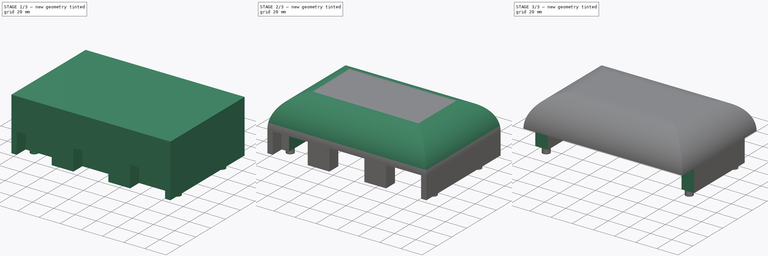
[diagram: build sequence overview — one tinted view per stage of 3, left to right]
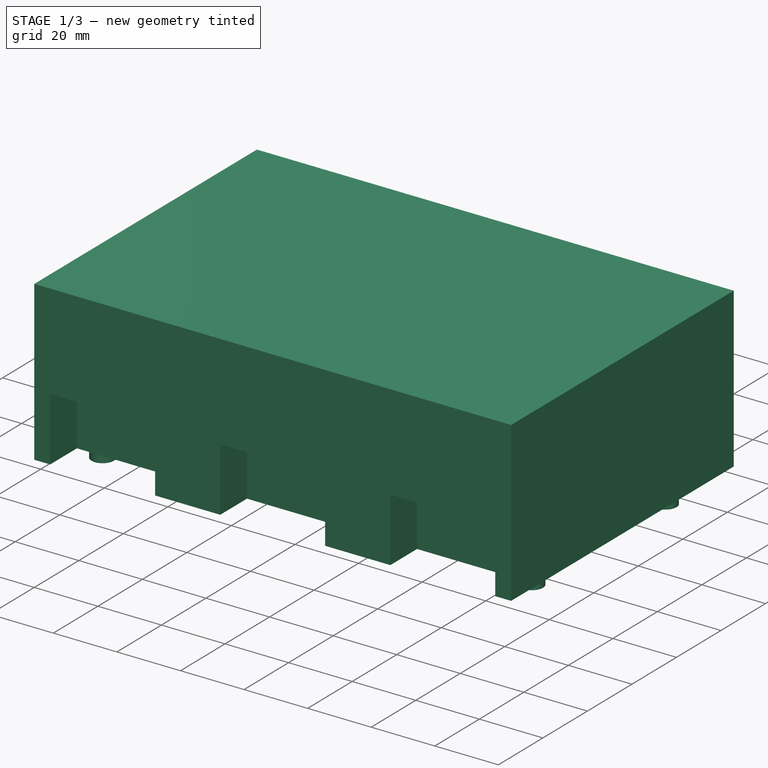
[diagram: stage 1 of 3 — iso view after this stage's code; geometry added in this stage tinted green]
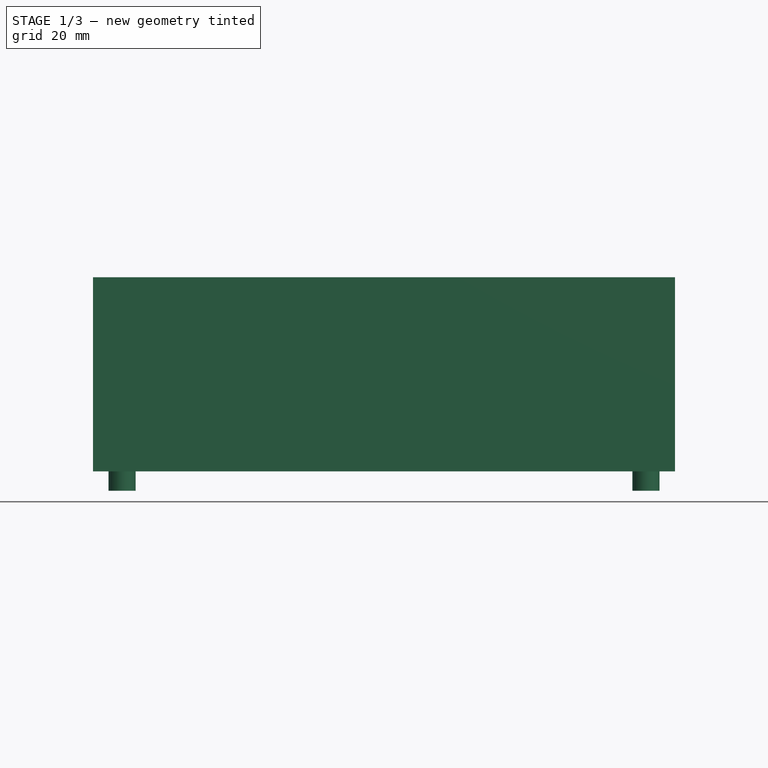
[diagram: stage 1 of 3 — front view after this stage's code; geometry added in this stage tinted green]
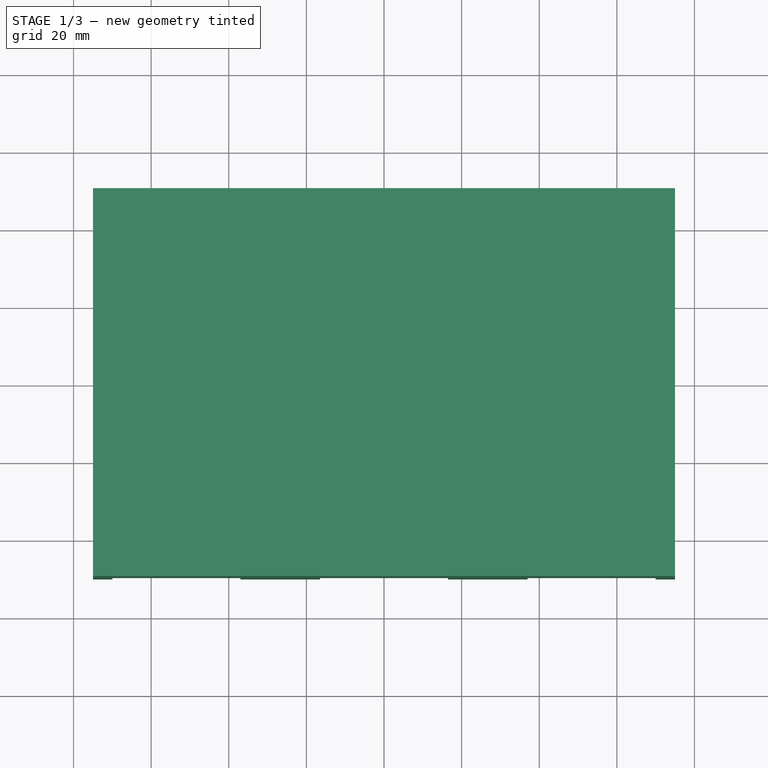
[diagram: stage 1 of 3 — top view after this stage's code; geometry added in this stage tinted green]
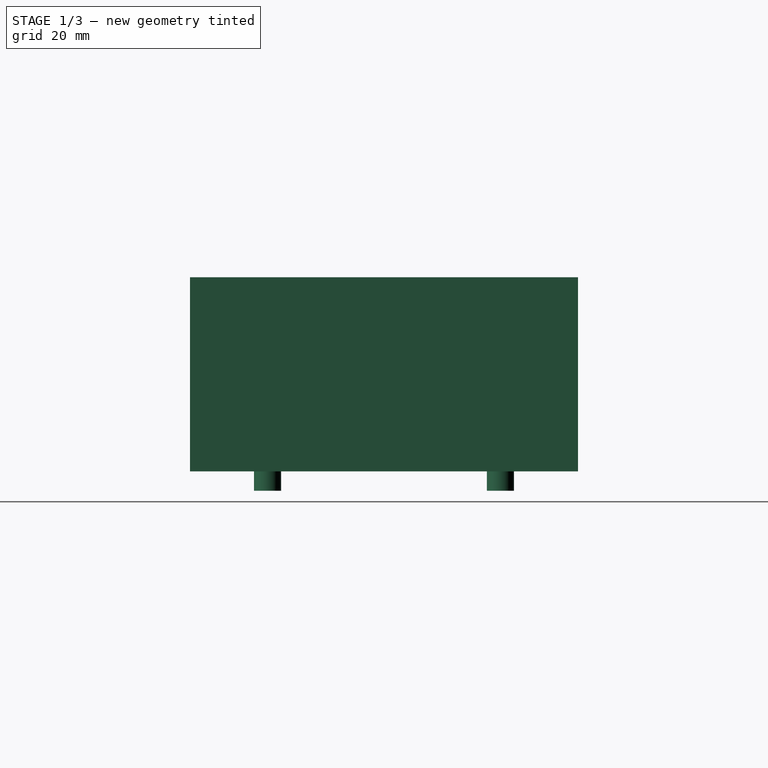
[diagram: stage 1 of 3 — right view after this stage's code; geometry added in this stage tinted green]
FCSTD DOCUMENT  (FreeCAD 0.21R33668 +26 (Git))
Label: tapa
License: All rights reserved
LicenseURL: https://en.wikipedia.org/wiki/All_rights_reserved
objects: Sketcher::SketchObject×7, PartDesign::Pocket×5, PartDesign::Pad×2, PartDesign::Fillet×1, PartDesign::Body×1
note: 24 computed .brp shape members not serialized (recipe doc carries the construction recipe); baked Part::Feature solids carry a one-line shape summary decoded from their .brp

FEATURE [Sketcher::SketchObject] Sketch
  FullyConstrained = true
  MapMode = 5
  Support = -> [XY_Plane]
  sketch-geometry (4):
    g0: LineSegment StartX=-75 StartY=50 StartZ=0 EndX=75 EndY=50 EndZ=0
    g1: LineSegment StartX=75 StartY=50 StartZ=0 EndX=75 EndY=-50 EndZ=0
    g2: LineSegment StartX=75 StartY=-50 StartZ=0 EndX=-75 EndY=-50 EndZ=0
    g3: LineSegment StartX=-75 StartY=-50 StartZ=0 EndX=-75 EndY=50 EndZ=0
  constraints (12):
    c: Coincident(g0,g1)
    c: Coincident(g1,g2)
    c: Coincident(g2,g3)
    c: Coincident(g3,g0)
    c: Horizontal(g0)
    c: Horizontal(g2)
    c: Vertical(g1)
    c: Vertical(g3)
    c: DistanceY(g3,g3) = 100
    c: DistanceX(g0,g0) = 150
    c: DistanceX(g0,g-1) = 75
    c: DistanceY(g-1,g0) = 50
FEATURE [PartDesign::Pad] Pad
  Direction = (0,0,1)
  Length = 50
  Length2 = 10
  Profile = -> Sketch
  ReferenceAxis = -> Sketch [N_Axis]
  Type = 0
FEATURE [Sketcher::SketchObject] Sketch001
  ExternalGeometry = -> [Pad]
  FullyConstrained = true
  MapMode = 5
  Placement = pos=(0,0,0) rot=(1,0,0;3.14159rad)
  Support = -> [Pad]
  sketch-geometry (4):
    g0: Circle CenterX=67.5 CenterY=30 CenterZ=0 NormalX=0 NormalY=0 NormalZ=1 AngleXU=0 Radius=3.5
    g1: Circle CenterX=67.5 CenterY=-30 CenterZ=0 NormalX=0 NormalY=0 NormalZ=1 AngleXU=0 Radius=3.5
    g2: Circle CenterX=-67.5 CenterY=-30 CenterZ=0 NormalX=0 NormalY=0 NormalZ=1 AngleXU=0 Radius=3.5
    g3: Circle CenterX=-67.5 CenterY=30 CenterZ=0 NormalX=0 NormalY=0 NormalZ=1 AngleXU=0 Radius=3.5
  constraints (12):
    c: DistanceY(g3,g-6) = 20
    c: DistanceY(g-5,g2) = 20
    c: DistanceY(g-4,g1) = 20
    c: DistanceY(g0,g-6) = 20
    c: DistanceX(g-6,g3) = 7.5
    c: DistanceX(g-5,g2) = 7.5
    c: DistanceX(g1,g-4) = 7.5
    c: DistanceX(g0,g-6) = 7.5
    c: Diameter(g3) = 7
    c: Diameter(g0) = 7
    c: Diameter(g1) = 7
    c: Diameter(g2) = 7
FEATURE [PartDesign::Pad] Pad001
  BaseFeature = -> Pad
  Direction = (0,0,-1)
  Length = 5
  Length2 = 10
  Profile = -> Sketch001
  ReferenceAxis = -> Sketch001 [N_Axis]
  Type = 0
FEATURE [Sketcher::SketchObject] Sketch002
  ExternalGeometry = -> [Pad001]
  FullyConstrained = true
  MapMode = 5
  Placement = pos=(0,0,0) rot=(1,0,0;3.14159rad)
  Support = -> [Pad001]
  sketch-geometry (24):
    g0: LineSegment StartX=-70 StartY=50 StartZ=0 EndX=-37 EndY=50 EndZ=0
    g1: LineSegment StartX=-37 StartY=50 StartZ=0 EndX=-37 EndY=38 EndZ=0
    g2: LineSegment StartX=-37 StartY=38 StartZ=0 EndX=-70 EndY=38 EndZ=0
    g3: LineSegment StartX=-70 StartY=38 StartZ=0 EndX=-70 EndY=50 EndZ=0
    g4: LineSegment StartX=37 StartY=50 StartZ=0 EndX=70 EndY=50 EndZ=0
    g5: LineSegment StartX=70 StartY=50 StartZ=0 EndX=70 EndY=38 EndZ=0
    g6: LineSegment StartX=70 StartY=38 StartZ=0 EndX=37 EndY=38 EndZ=0
    g7: LineSegment StartX=37 StartY=38 StartZ=0 EndX=37 EndY=50 EndZ=0
    g8: LineSegment StartX=-16.5 StartY=50 StartZ=0 EndX=16.5 EndY=50 EndZ=0
    g9: LineSegment StartX=16.5 StartY=50 StartZ=0 EndX=16.5 EndY=38 EndZ=0
    g10: LineSegment StartX=16.5 StartY=38 StartZ=0 EndX=-16.5 EndY=38 EndZ=0
    g11: LineSegment StartX=-16.5 StartY=38 StartZ=0 EndX=-16.5 EndY=50 EndZ=0
    g12: LineSegment StartX=-70 StartY=-50 StartZ=0 EndX=-37 EndY=-50 EndZ=0
    g13: LineSegment StartX=-37 StartY=-50 StartZ=0 EndX=-37 EndY=-38 EndZ=0
    g14: LineSegment StartX=-37 StartY=-38 StartZ=0 EndX=-70 EndY=-38 EndZ=0
    g15: LineSegment StartX=-70 StartY=-38 StartZ=0 EndX=-70 EndY=-50 EndZ=0
    g16: LineSegment StartX=-16.5 StartY=-50 StartZ=0 EndX=16.5 EndY=-50 EndZ=0
    g17: LineSegment StartX=16.5 StartY=-50 StartZ=0 EndX=16.5 EndY=-38 EndZ=0
    g18: LineSegment StartX=16.5 StartY=-38 StartZ=0 EndX=-16.5 EndY=-38 EndZ=0
    g19: LineSegment StartX=-16.5 StartY=-38 StartZ=0 EndX=-16.5 EndY=-50 EndZ=0
    g20: LineSegment StartX=37 StartY=-50 StartZ=0 EndX=70 EndY=-50 EndZ=0
    g21: LineSegment StartX=70 StartY=-50 StartZ=0 EndX=70 EndY=-38 EndZ=0
    g22: LineSegment StartX=70 StartY=-38 StartZ=0 EndX=37 EndY=-38 EndZ=0
    g23: LineSegment StartX=37 StartY=-38 StartZ=0 EndX=37 EndY=-50 EndZ=0
  constraints (72):
    c: Coincident(g0,g1)
    c: Coincident(g1,g2)
    c: Coincident(g2,g3)
    c: Coincident(g3,g0)
    c: Horizontal(g0)
    c: Horizontal(g2)
    c: Vertical(g1)
    c: Vertical(g3)
    c: PointOnObject(g0,g-6)
    c: DistanceX(g2,g2) = 33
    c: DistanceX(g-6,g2) = 5
    c: DistanceY(g3,g3) = 12
    c: Coincident(g4,g5)
    c: Coincident(g5,g6)
    c: Coincident(g6,g7)
    c: Coincident(g7,g4)
    c: Horizontal(g4)
    c: Horizontal(g6)
    c: Vertical(g5)
    c: Vertical(g7)
    c: PointOnObject(g4,g-6)
    c: DistanceY(g5,g5) = 12
    c: DistanceX(g5,g-6) = 5
    c: DistanceX(g6,g6) = 33
    c: Coincident(g8,g9)
    c: Coincident(g9,g10)
    c: Coincident(g10,g11)
    c: Coincident(g11,g8)
    c: Horizontal(g8)
    c: Horizontal(g10)
    c: Vertical(g9)
    c: Vertical(g11)
    c: PointOnObject(g8,g-6)
    c: DistanceX(g10,g10) = 33
    c: DistanceX(g8,g-1) = 16.5
    c: DistanceY(g11,g11) = 12
    c: Coincident(g12,g13)
    c: Coincident(g13,g14)
    c: Coincident(g14,g15)
    c: Coincident(g15,g12)
    c: Horizontal(g12)
    c: Horizontal(g14)
    c: Vertical(g13)
    c: Vertical(g15)
    c: PointOnObject(g12,g-3)
    c: Coincident(g16,g17)
    c: Coincident(g17,g18)
    c: Coincident(g18,g19)
    c: Coincident(g19,g16)
    c: Horizontal(g16)
    c: Horizontal(g18)
    c: Vertical(g17)
    c: Vertical(g19)
    c: PointOnObject(g16,g-3)
    c: Coincident(g20,g21)
    c: Coincident(g21,g22)
    c: Coincident(g22,g23)
    c: Coincident(g23,g20)
    c: Horizontal(g20)
    c: Horizontal(g22)
    c: Vertical(g21)
    c: Vertical(g23)
    c: PointOnObject(g20,g-3)
    c: DistanceY(g15,g15) = 12
    c: DistanceY(g19,g19) = 12
    c: DistanceY(g23,g23) = 12
    c: DistanceX(g21,g-4) = 5
    c: DistanceX(g-5,g14) = 5
    c: DistanceX(g14,g14) = 33
    c: DistanceX(g22,g22) = 33
    c: DistanceX(g18,g18) = 33
    c: DistanceX(g16,g-1) = 16.5
FEATURE [PartDesign::Pocket] Pocket
  BaseFeature = -> Pad001
  Direction = (0,0,1)
  Length = 20
  Length2 = 5
  Profile = -> Sketch002
  ReferenceAxis = -> Sketch002 [N_Axis]
  Type = 0
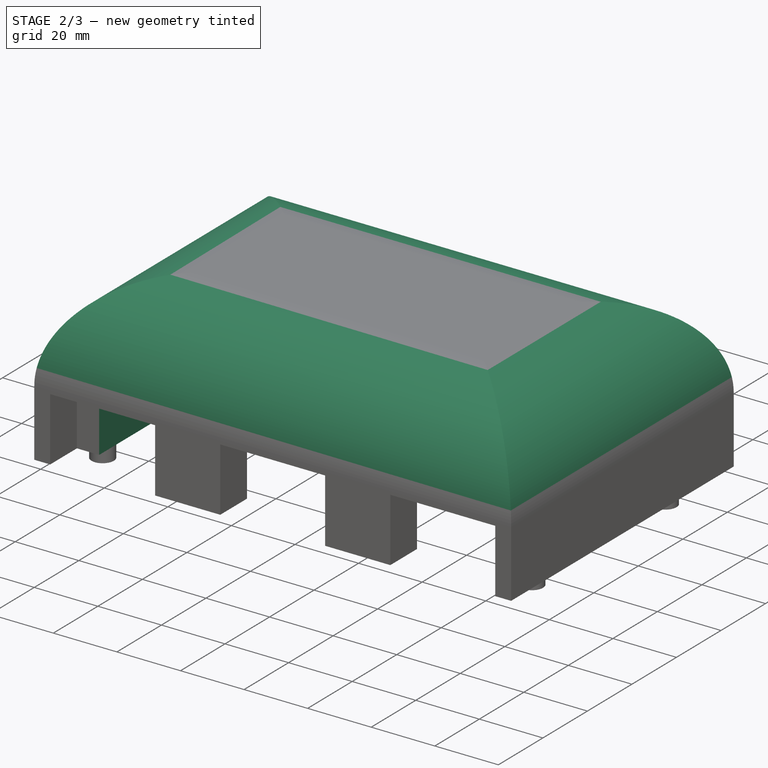
[diagram: stage 2 of 3 — iso view after this stage's code; geometry added in this stage tinted green]
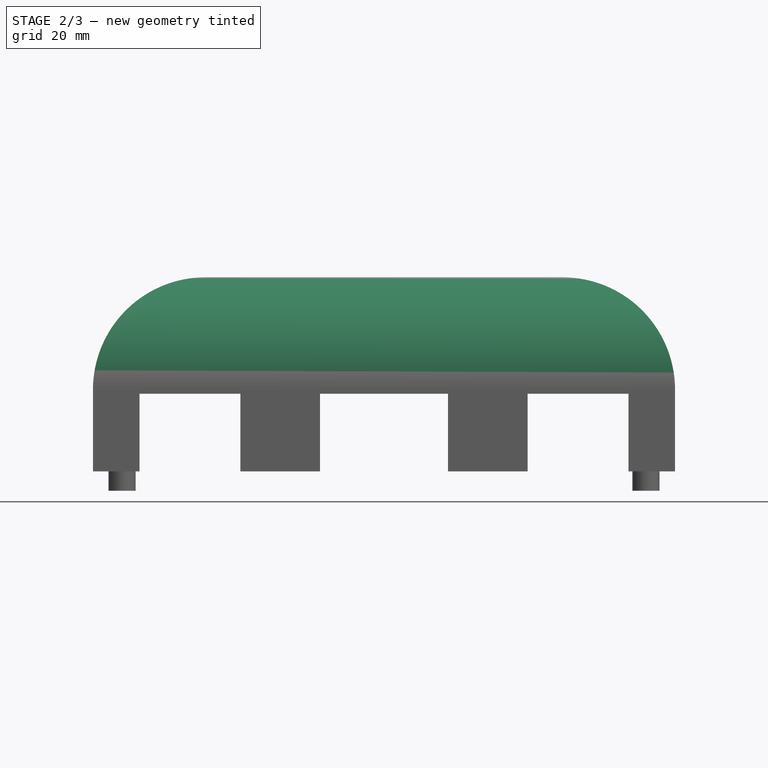
[diagram: stage 2 of 3 — front view after this stage's code; geometry added in this stage tinted green]
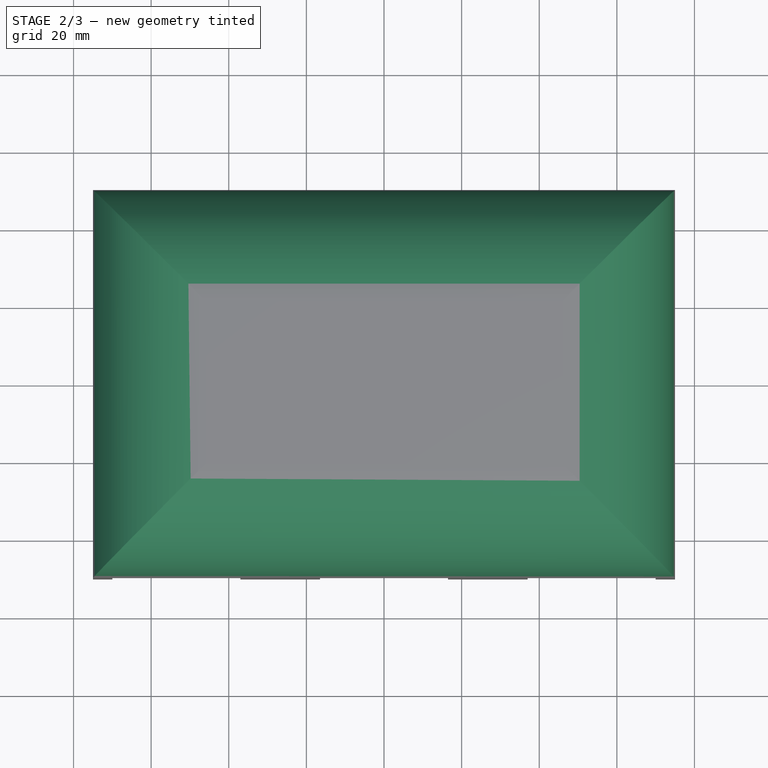
[diagram: stage 2 of 3 — top view after this stage's code; geometry added in this stage tinted green]
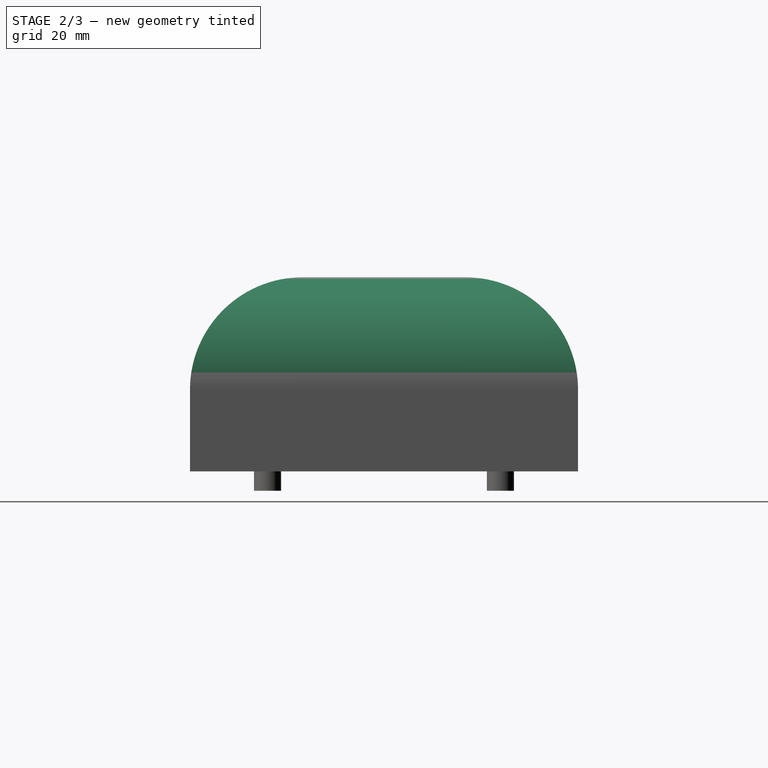
[diagram: stage 2 of 3 — right view after this stage's code; geometry added in this stage tinted green]
FEATURE [PartDesign::Fillet] Fillet
  Base = -> Pocket [Face13]
  BaseFeature = -> Pocket
  Radius = 29
  SupportTransform = false
  UseAllEdges = false
FEATURE [Sketcher::SketchObject] Sketch004
  ExternalGeometry = -> [Fillet]
  FullyConstrained = true
  MapMode = 5
  Placement = pos=(0,0,0) rot=(1,0,0;3.14159rad)
  Support = -> [Fillet]
  sketch-geometry (4):
    g0: LineSegment StartX=-63 StartY=38 StartZ=0 EndX=63 EndY=38 EndZ=0
    g1: LineSegment StartX=63 StartY=38 StartZ=0 EndX=63 EndY=-38 EndZ=0
    g2: LineSegment StartX=63 StartY=-38 StartZ=0 EndX=-63 EndY=-38 EndZ=0
    g3: LineSegment StartX=-63 StartY=-38 StartZ=0 EndX=-63 EndY=38 EndZ=0
  constraints (12):
    c: Coincident(g0,g1)
    c: Coincident(g1,g2)
    c: Coincident(g2,g3)
    c: Coincident(g3,g0)
    c: Horizontal(g0)
    c: Horizontal(g2)
    c: Vertical(g1)
    c: Vertical(g3)
    c: PointOnObject(g0,g-6)
    c: PointOnObject(g1,g-4)
    c: DistanceX(g-6,g0) = 7
    c: DistanceX(g0,g-5) = 7
FEATURE [PartDesign::Pocket] Pocket001
  BaseFeature = -> Fillet
  Direction = (0,0,1)
  Length = 25
  Length2 = 5
  Profile = -> Sketch004
  ReferenceAxis = -> Sketch004 [N_Axis]
  Type = 0
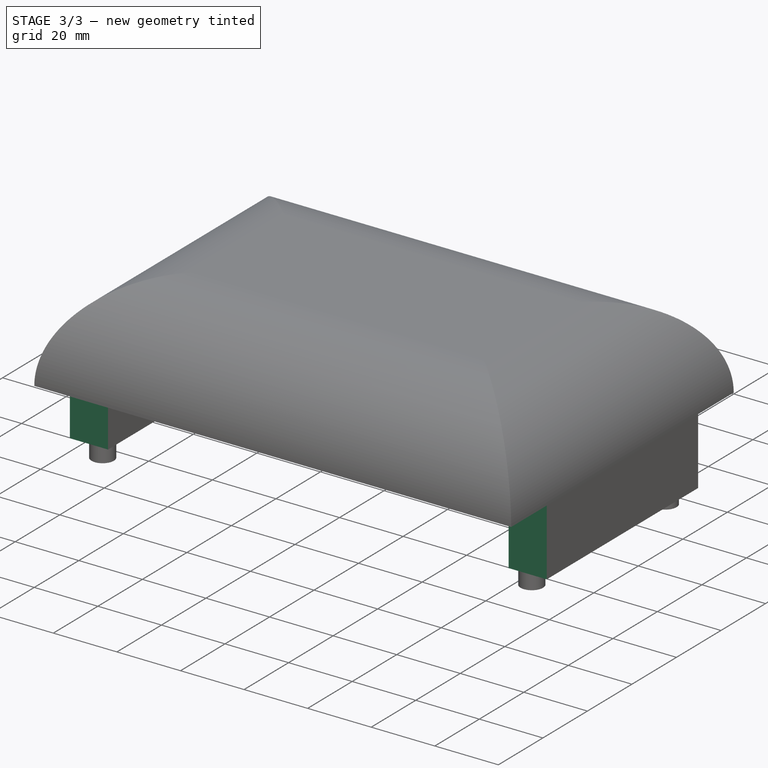
[diagram: stage 3 of 3 — iso view after this stage's code; geometry added in this stage tinted green]
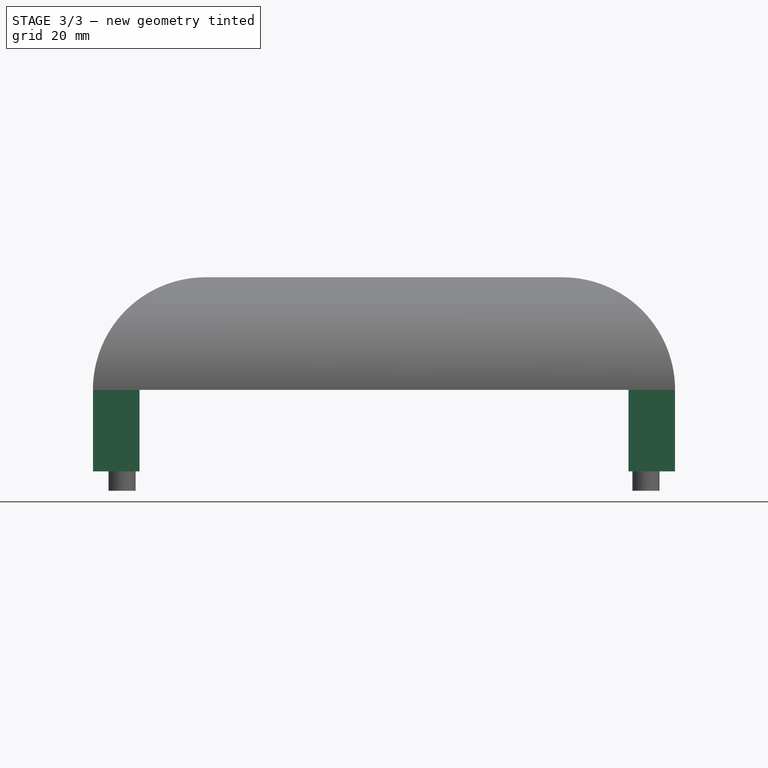
[diagram: stage 3 of 3 — front view after this stage's code; geometry added in this stage tinted green]
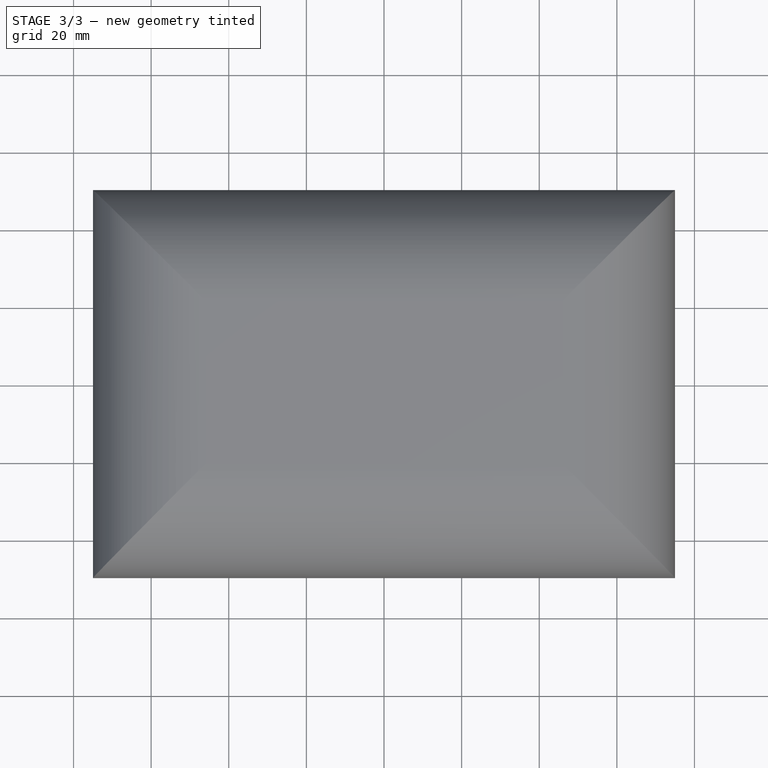
[diagram: stage 3 of 3 — top view after this stage's code; geometry added in this stage tinted green]
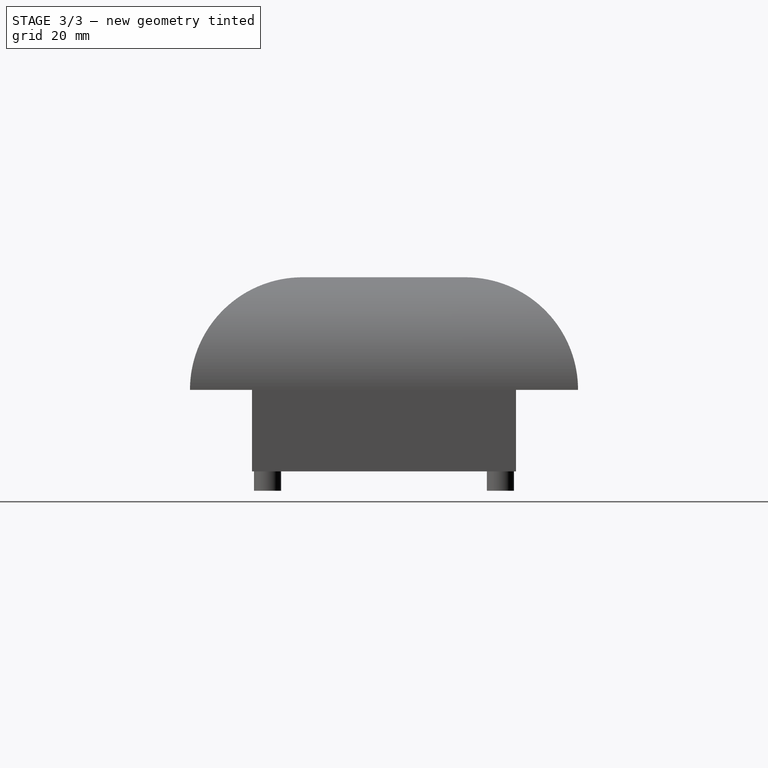
[diagram: stage 3 of 3 — right view after this stage's code; geometry added in this stage tinted green]
FEATURE [Sketcher::SketchObject] Sketch005
  ExternalGeometry = -> [Pocket001]
  FullyConstrained = true
  MapMode = 5
  Placement = pos=(0,0,0) rot=(1,0,0;3.14159rad)
  Support = -> [Pocket001]
  sketch-geometry (4):
    g0: Circle CenterX=-26 CenterY=42.5 CenterZ=0 NormalX=0 NormalY=0 NormalZ=1 AngleXU=0 Radius=4
    g1: Circle CenterX=27.5 CenterY=42.5 CenterZ=0 NormalX=0 NormalY=0 NormalZ=1 AngleXU=0 Radius=4
    g2: Circle CenterX=-26 CenterY=-42.5 CenterZ=0 NormalX=0 NormalY=0 NormalZ=1 AngleXU=0 Radius=4
    g3: Circle CenterX=27.5 CenterY=-42.5 CenterZ=0 NormalX=0 NormalY=0 NormalZ=1 AngleXU=0 Radius=4
  constraints (12):
    c: Diameter(g2) = 8
    c: Diameter(g0) = 8
    c: Diameter(g1) = 8
    c: Diameter(g3) = 8
    c: DistanceX(g-17,g0) = 49
    c: DistanceX(g1,g-14) = 47.5
    c: DistanceX(g-10,g2) = 49
    c: DistanceX(g3,g-13) = 47.5
    c: DistanceY(g0,g-17) = 7.5
    c: DistanceY(g1,g-14) = 7.5
    c: DistanceY(g-10,g2) = 7.5
    c: DistanceY(g-13,g3) = 7.5
FEATURE [PartDesign::Pocket] Pocket002
  BaseFeature = -> Pocket001
  Direction = (0,0,1)
  Length = 5
  Length2 = 5
  Profile = -> Sketch005
  ReferenceAxis = -> Sketch005 [N_Axis]
  Type = 0
FEATURE [Sketcher::SketchObject] Sketch006
  ExternalGeometry = -> [Pocket002]
  FullyConstrained = true
  MapMode = 5
  Placement = pos=(0,-50,0) rot=(1,0,0;1.5708rad)
  Support = -> [Pocket002]
  sketch-geometry (8):
    g0: LineSegment StartX=-37 StartY=20 StartZ=0 EndX=-16.5 EndY=20 EndZ=0
    g1: LineSegment StartX=-16.5 StartY=20 StartZ=0 EndX=-16.5 EndY=0 EndZ=0
    g2: LineSegment StartX=-16.5 StartY=0 StartZ=0 EndX=-37 EndY=0 EndZ=0
    g3: LineSegment StartX=-37 StartY=0 StartZ=0 EndX=-37 EndY=20 EndZ=0
    g4: LineSegment StartX=16.5 StartY=20 StartZ=0 EndX=37 EndY=20 EndZ=0
    g5: LineSegment StartX=37 StartY=20 StartZ=0 EndX=37 EndY=0 EndZ=0
    g6: LineSegment StartX=37 StartY=0 StartZ=0 EndX=16.5 EndY=0 EndZ=0
    g7: LineSegment StartX=16.5 StartY=0 StartZ=0 EndX=16.5 EndY=20 EndZ=0
  constraints (20):
    c: Coincident(g0,g1)
    c: Coincident(g1,g2)
    c: Coincident(g2,g3)
    c: Coincident(g3,g0)
    c: Horizontal(g0)
    c: Horizontal(g2)
    c: Vertical(g1)
    c: Vertical(g3)
    c: Coincident(g0,g-4)
    c: Coincident(g1,g-3)
    c: Coincident(g4,g5)
    c: Coincident(g5,g6)
    c: Coincident(g6,g7)
    c: Coincident(g7,g4)
    c: Horizontal(g4)
    c: Horizontal(g6)
    c: Vertical(g5)
    c: Vertical(g7)
    c: Coincident(g4,g-5)
    c: Coincident(g5,g-6)
FEATURE [PartDesign::Pocket] Pocket003
  BaseFeature = -> Pocket002
  Direction = (0,1,-2e-16)
  Length = 100
  Length2 = 5
  Profile = -> Sketch006
  ReferenceAxis = -> Sketch006 [N_Axis]
  Type = 0
FEATURE [Sketcher::SketchObject] Sketch008
  ExternalGeometry = -> [Pocket003]
  FullyConstrained = true
  MapMode = 5
  Placement = pos=(-75,0,0) rot=(0.57735,-0.57735,-0.57735;2.0944rad)
  Support = -> [Pocket003]
  sketch-geometry (8):
    g0: LineSegment StartX=-50 StartY=21 StartZ=0 EndX=-34 EndY=21 EndZ=0
    g1: LineSegment StartX=-34 StartY=21 StartZ=0 EndX=-34 EndY=0 EndZ=0
    g2: LineSegment StartX=-34 StartY=0 StartZ=0 EndX=-50 EndY=0 EndZ=0
    g3: LineSegment StartX=-50 StartY=0 StartZ=0 EndX=-50 EndY=21 EndZ=0
    g4: LineSegment StartX=50 StartY=21 StartZ=0 EndX=34 EndY=21 EndZ=0
    g5: LineSegment StartX=34 StartY=21 StartZ=0 EndX=34 EndY=0 EndZ=0
    g6: LineSegment StartX=34 StartY=0 StartZ=0 EndX=50 EndY=0 EndZ=0
    g7: LineSegment StartX=50 StartY=0 StartZ=0 EndX=50 EndY=21 EndZ=0
  constraints (22):
    c: Coincident(g0,g1)
    c: Coincident(g1,g2)
    c: Coincident(g2,g3)
    c: Coincident(g3,g0)
    c: Horizontal(g0)
    c: Horizontal(g2)
    c: Vertical(g1)
    c: Vertical(g3)
    c: Coincident(g0,g-4)
    c: PointOnObject(g1,g-6)
    c: Coincident(g4,g5)
    c: Coincident(g5,g6)
    c: Coincident(g6,g7)
    c: Coincident(g7,g4)
    c: Horizontal(g4)
    c: Horizontal(g6)
    c: Vertical(g5)
    c: Vertical(g7)
    c: Coincident(g4,g-5)
    c: PointOnObject(g5,g-6)
    c: DistanceX(g2,g2) = 16
    c: DistanceX(g6,g6) = 16
FEATURE [PartDesign::Pocket] Pocket004
  BaseFeature = -> Pocket003
  Direction = (1,0,0)
  Length = 200
  Length2 = 5
  Profile = -> Sketch008
  ReferenceAxis = -> Sketch008 [N_Axis]
  Type = 0
FEATURE [PartDesign::Body] Body
  Group = -> [Sketch,Pad,Sketch001,Pad001,Sketch002,Pocket,Fillet,Sketch004,Pocket001,Sketch005,Pocket002,Sketch006,Pocket003,Sketch008,Pocket004]
  Origin = -> Origin
  Tip = -> Pocket004
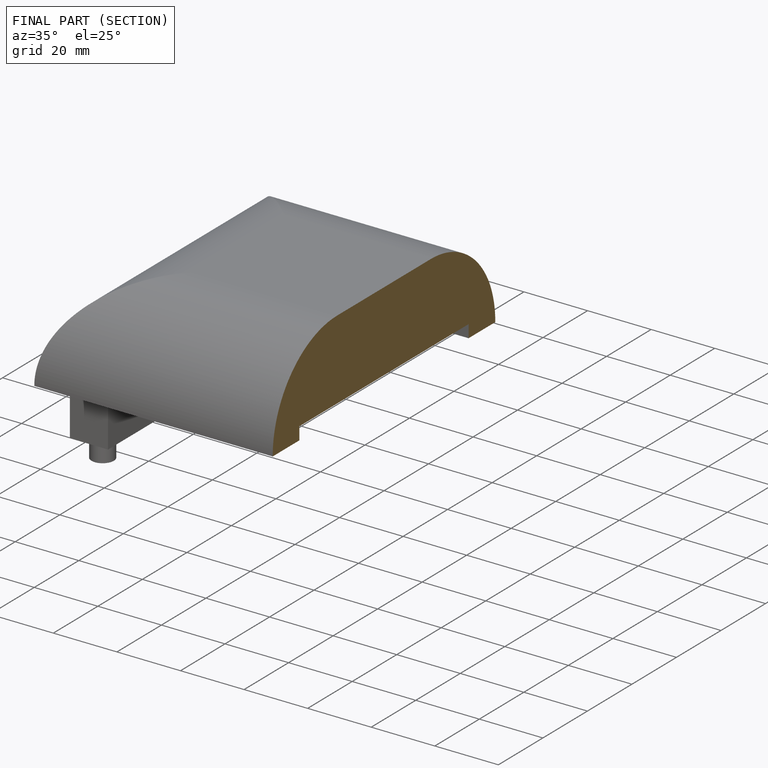
[diagram: finished part — half-section view (interior)]
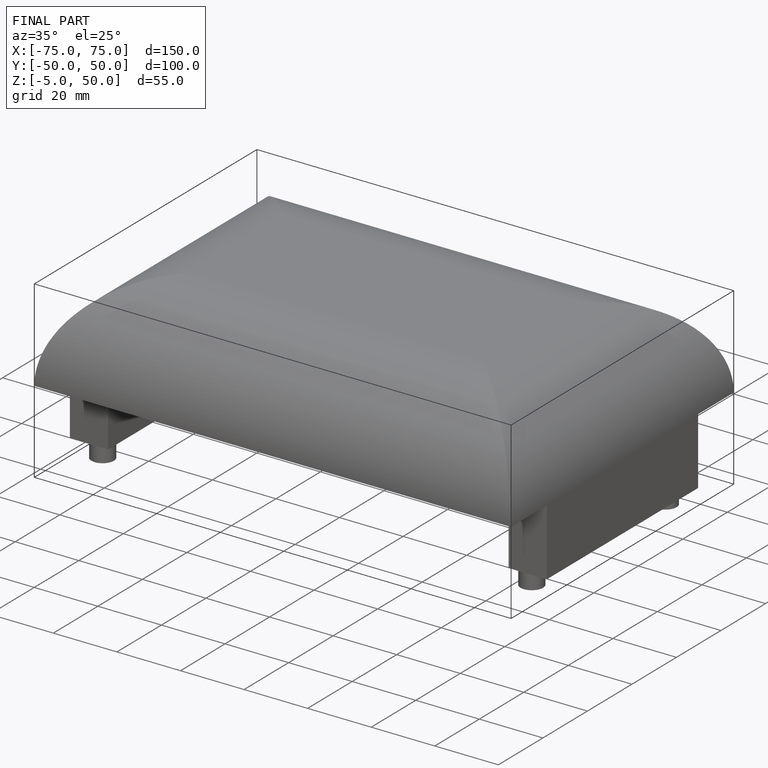
[diagram: finished part — iso view with bounding-box wireframe]
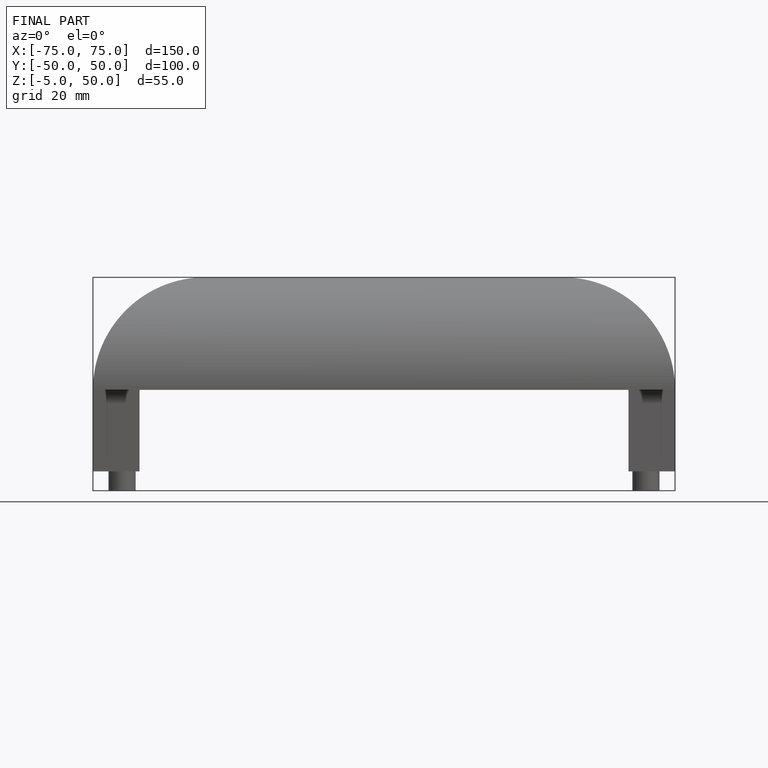
[diagram: finished part — front view with bounding-box wireframe]
